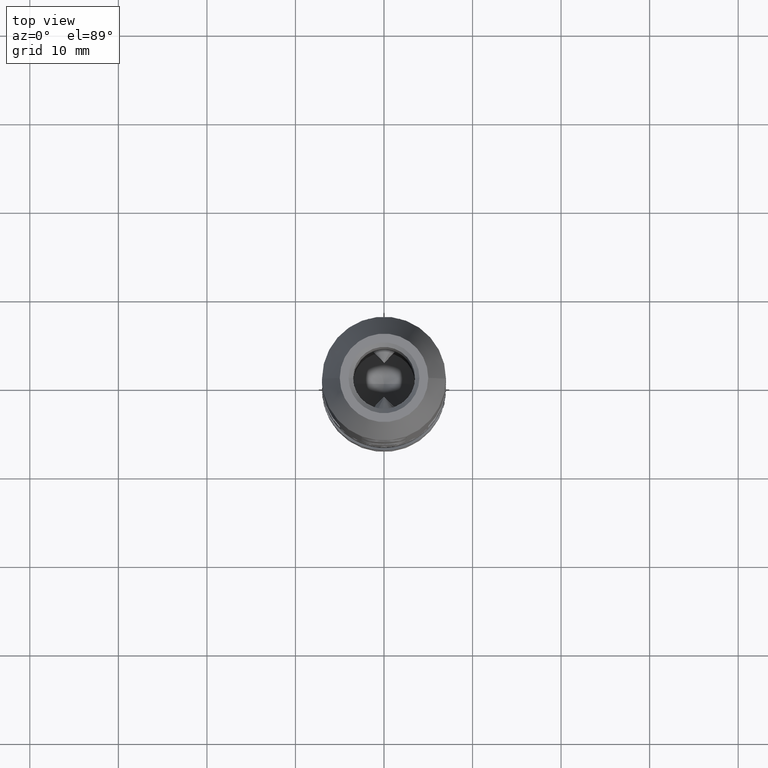
[diagram: clean part render]
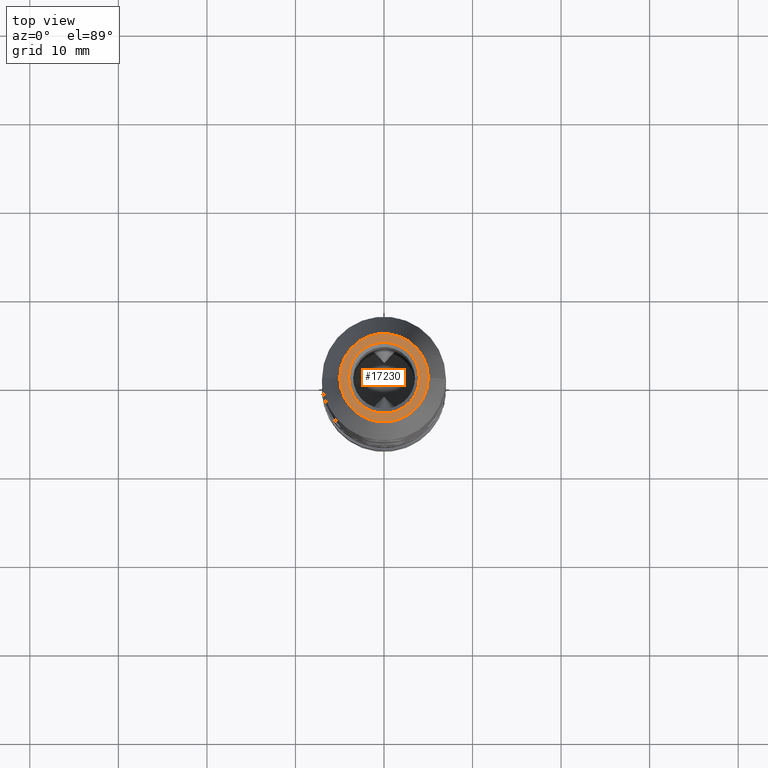
[diagram: same view with one face highlighted and labeled with its STEP entity id]
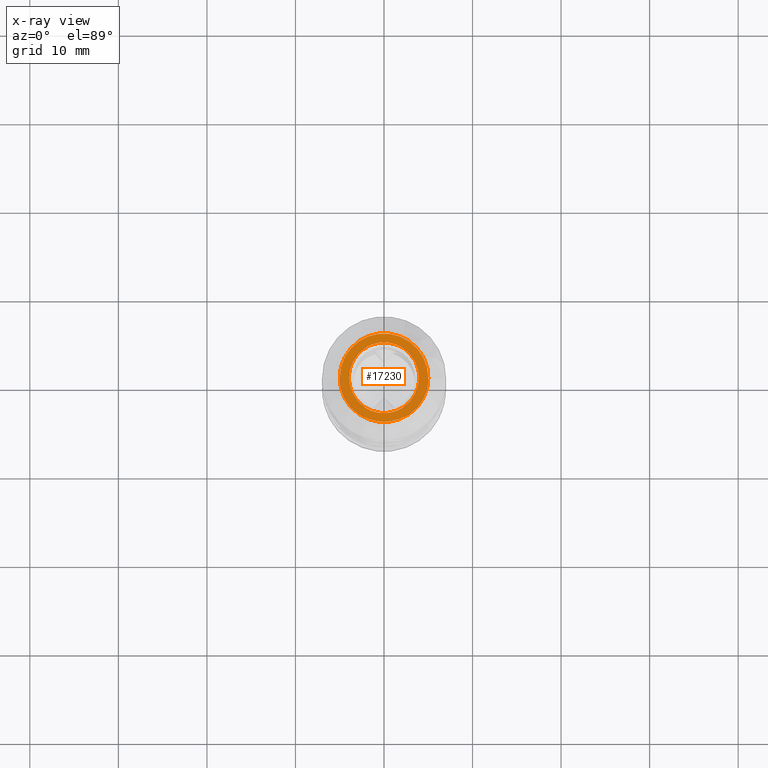
[diagram: x-ray of the same camera — body ghosted, the highlighted face saturated]
A machine part, top view. The second image highlights one B-rep face of the part: STEP entity #17230.
The next image is the same camera in x-ray: the body ghosted, the highlighted face saturated — about 0% of this face is hidden behind the body in this view.
In plain terms, the highlighted planar face has unit normal (0, 0, 1).
Its self-contained STEP definition (entity closure, byte-faithful):
#208 = EDGE_CURVE ( 'NONE', #12406, #8261, #14640, .T. ) ;
#406 = CARTESIAN_POINT ( 'NONE',  ( 0.000000000000000000, 0.000000000000000000, 22.00000000000000000 ) ) ;
#790 = VERTEX_POINT ( 'NONE', #18011 ) ;
#1338 = AXIS2_PLACEMENT_3D ( 'NONE', #406, #4807, #6462 ) ;
#1839 = ORIENTED_EDGE ( 'NONE', *, *, #6051, .F. ) ;
#3638 = DIRECTION ( 'NONE',  ( 0.000000000000000000, 0.000000000000000000, 1.000000000000000000 ) ) ;
#3782 = CARTESIAN_POINT ( 'NONE',  ( 0.000000000000000000, 0.000000000000000000, 22.00000000000000000 ) ) ;
#4756 = CARTESIAN_POINT ( 'NONE',  ( 0.000000000000000000, 0.000000000000000000, 22.00000000000000000 ) ) ;
#4807 = DIRECTION ( 'NONE',  ( -0.000000000000000000, -0.000000000000000000, -1.000000000000000000 ) ) ;
#5134 = AXIS2_PLACEMENT_3D ( 'NONE', #3782, #13302, #17779 ) ;
#5252 = AXIS2_PLACEMENT_3D ( 'NONE', #14180, #19095, #6515 ) ;
#5292 = CARTESIAN_POINT ( 'NONE',  ( -4.999999999999997335, 0.000000000000000000, 22.00000000000000000 ) ) ;
#5805 = CIRCLE ( 'NONE', #9004, 4.000000000000010658 ) ;
#6051 = EDGE_CURVE ( 'NONE', #8261, #12406, #11748, .T. ) ;
#6462 = DIRECTION ( 'NONE',  ( -1.000000000000000000, 0.000000000000000000, 0.000000000000000000 ) ) ;
#6515 = DIRECTION ( 'NONE',  ( 1.000000000000000000, 0.000000000000000000, 0.000000000000000000 ) ) ;
#7578 = CARTESIAN_POINT ( 'NONE',  ( 4.000000000000010658, 0.000000000000000000, 22.00000000000000000 ) ) ;
#8261 = VERTEX_POINT ( 'NONE', #18670 ) ;
#8826 = AXIS2_PLACEMENT_3D ( 'NONE', #17845, #3638, #17923 ) ;
#9004 = AXIS2_PLACEMENT_3D ( 'NONE', #4756, #15715, #18833 ) ;
#9149 = FACE_OUTER_BOUND ( 'NONE', #16221, .T. ) ;
#10282 = EDGE_CURVE ( 'NONE', #790, #16395, #5805, .T. ) ;
#11001 = EDGE_LOOP ( 'NONE', ( #19802, #15002 ) ) ;
#11748 = CIRCLE ( 'NONE', #1338, 4.999999999999997335 ) ;
#12406 = VERTEX_POINT ( 'NONE', #5292 ) ;
#13302 = DIRECTION ( 'NONE',  ( -0.000000000000000000, -0.000000000000000000, -1.000000000000000000 ) ) ;
#13604 = ORIENTED_EDGE ( 'NONE', *, *, #208, .F. ) ;
#14020 = CIRCLE ( 'NONE', #5252, 4.000000000000010658 ) ;
#14180 = CARTESIAN_POINT ( 'NONE',  ( 0.000000000000000000, 0.000000000000000000, 22.00000000000000000 ) ) ;
#14640 = CIRCLE ( 'NONE', #5134, 4.999999999999997335 ) ;
#14870 = PLANE ( 'NONE',  #8826 ) ;
#15002 = ORIENTED_EDGE ( 'NONE', *, *, #10282, .T. ) ;
#15715 = DIRECTION ( 'NONE',  ( -0.000000000000000000, -0.000000000000000000, -1.000000000000000000 ) ) ;
#16221 = EDGE_LOOP ( 'NONE', ( #13604, #1839 ) ) ;
#16395 = VERTEX_POINT ( 'NONE', #7578 ) ;
#16963 = FACE_BOUND ( 'NONE', #11001, .T. ) ;
#17230 = ADVANCED_FACE ( 'NONE', ( #9149, #16963 ), #14870, .T. ) ;
#17704 = EDGE_CURVE ( 'NONE', #16395, #790, #14020, .T. ) ;
#17779 = DIRECTION ( 'NONE',  ( -1.000000000000000000, 0.000000000000000000, 0.000000000000000000 ) ) ;
#17845 = CARTESIAN_POINT ( 'NONE',  ( 0.000000000000000000, 0.000000000000000000, 22.00000000000000000 ) ) ;
#17923 = DIRECTION ( 'NONE',  ( 1.000000000000000000, 0.000000000000000000, -0.000000000000000000 ) ) ;
#18011 = CARTESIAN_POINT ( 'NONE',  ( -4.000000000000010658, 4.898587196589424662E-16, 22.00000000000000000 ) ) ;
#18670 = CARTESIAN_POINT ( 'NONE',  ( 4.999999999999997335, 7.347880794884117764E-16, 22.00000000000000000 ) ) ;
#18833 = DIRECTION ( 'NONE',  ( 1.000000000000000000, 0.000000000000000000, 0.000000000000000000 ) ) ;
#19095 = DIRECTION ( 'NONE',  ( -0.000000000000000000, -0.000000000000000000, -1.000000000000000000 ) ) ;
#19802 = ORIENTED_EDGE ( 'NONE', *, *, #17704, .T. ) ;